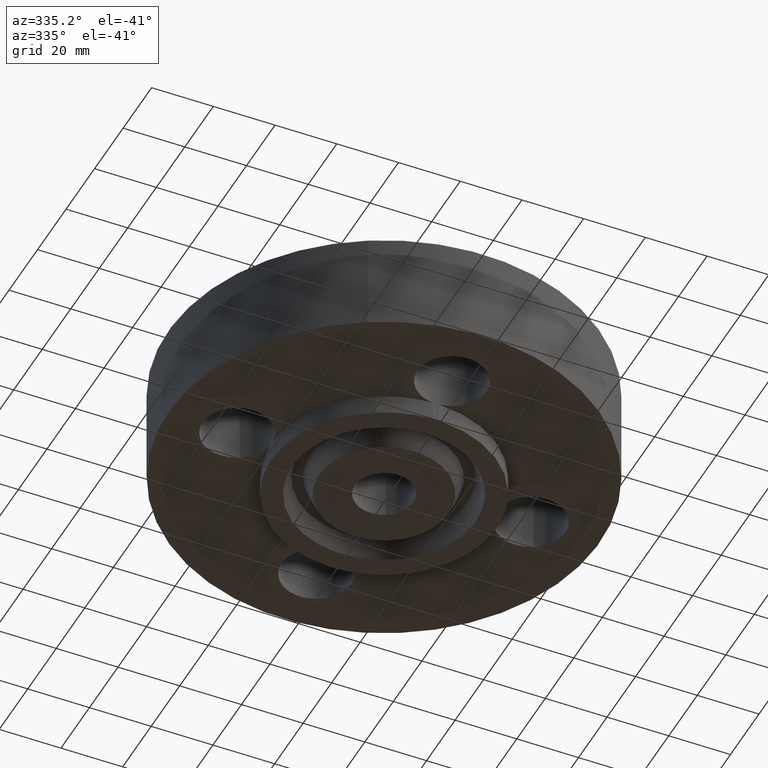
[diagram: clean part render]
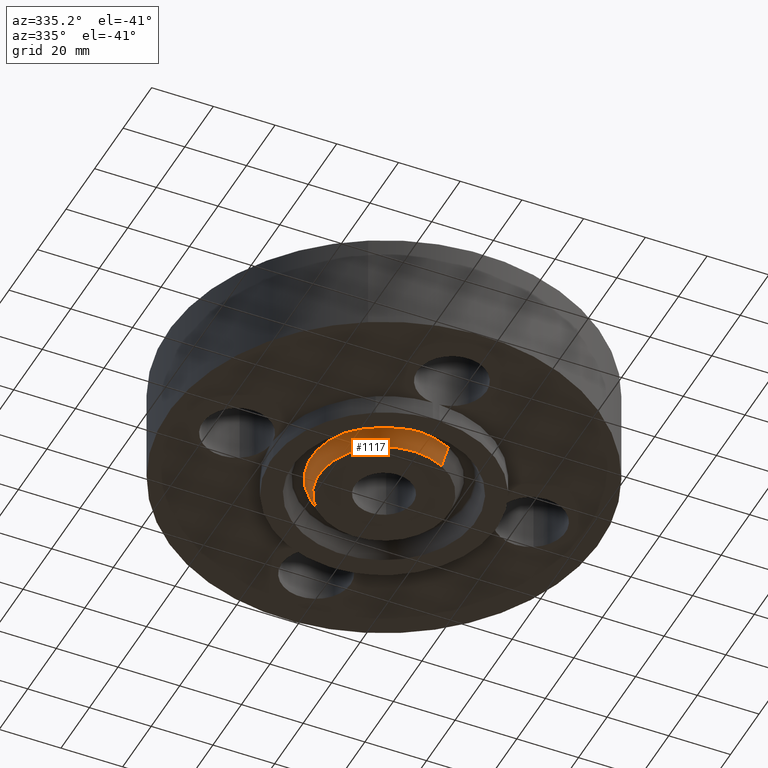
[diagram: same view with one face highlighted and labeled with its STEP entity id]
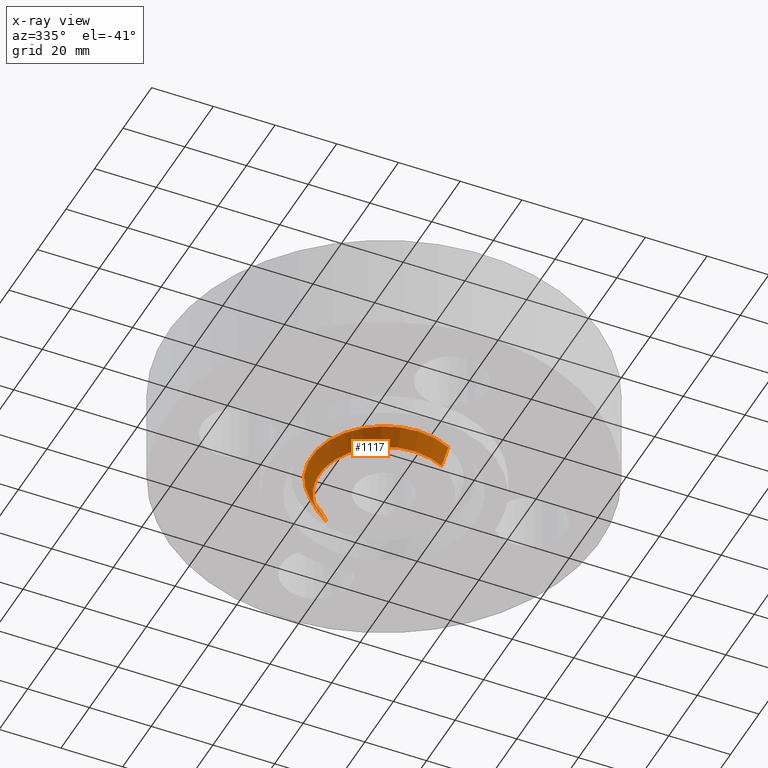
[diagram: x-ray of the same camera — body ghosted, the highlighted face saturated]
A machine part, auxiliary view. The second image highlights one B-rep face of the part: STEP entity #1117.
The next image is the same camera in x-ray: the body ghosted, the highlighted face saturated — about 0% of this face is hidden behind the body in this view.
In plain terms, the highlighted conical surface has half-angle 23 deg.
Its self-contained STEP definition (entity closure, byte-faithful):
#925=AXIS2_PLACEMENT_3D('Circle Axis2P3D',#923,#924,$) ;
#1079=AXIS2_PLACEMENT_3D('Circle Axis2P3D',#1077,#1078,$) ;
#1092=AXIS2_PLACEMENT_3D('Cone Axis2P3D',#1089,#1090,#1091) ;
#918=CARTESIAN_POINT('Vertex',(-0.396964345966,0.726638361248,-0.250000000001)) ;
#920=CARTESIAN_POINT('Vertex',(0.396964345966,-0.726638361248,-0.250000000001)) ;
#923=CARTESIAN_POINT('Axis2P3D Location',(-2.09805925913E-016,6.99353086378E-017,-0.250000000001)) ;
#1055=CARTESIAN_POINT('Vertex',(0.443996713314,-0.812730532203,-0.0188873350169)) ;
#1062=CARTESIAN_POINT('Vertex',(-0.443996713314,0.812730532203,-0.0188873350169)) ;
#1077=CARTESIAN_POINT('Axis2P3D Location',(0.,0.,-0.0188873350169)) ;
#1089=CARTESIAN_POINT('Axis2P3D Location',(0.,0.,-0.310000000001)) ;
#1094=CARTESIAN_POINT('Line Origine',(-0.42048052964,0.769684446725,-0.134443667509)) ;
#1099=CARTESIAN_POINT('Line Origine',(0.42048052964,-0.769684446725,-0.134443667509)) ;
#924=DIRECTION('Axis2P3D Direction',(0.,0.,-0.0393700787402)) ;
#1078=DIRECTION('Axis2P3D Direction',(0.,0.,0.0393700787402)) ;
#1090=DIRECTION('Axis2P3D Direction',(0.,0.,0.0393700787402)) ;
#1091=DIRECTION('Axis2P3D XDirection',(-0.0188750212049,0.0345504945626,0.)) ;
#1095=DIRECTION('Vector Direction',(-0.00737505833565,0.0134999537303,0.0362403485611)) ;
#1100=DIRECTION('Vector Direction',(0.00737505833565,-0.0134999537303,0.0362403485611)) ;
#1096=VECTOR('Line Direction',#1095,0.0393700787402) ;
#1101=VECTOR('Line Direction',#1100,0.0393700787402) ;
#1112=ORIENTED_EDGE('',*,*,#1103,.F.) ;
#1113=ORIENTED_EDGE('',*,*,#1081,.F.) ;
#1114=ORIENTED_EDGE('',*,*,#1098,.T.) ;
#1115=ORIENTED_EDGE('',*,*,#927,.F.) ;
#1117=ADVANCED_FACE('PartBody',(#1116),#1093,.T.) ;
#926=CIRCLE('generated circle',#925,0.828000000003) ;
#1080=CIRCLE('generated circle',#1079,0.926101505996) ;
#1093=CONICAL_SURFACE('Cone',#1092,0.802531511031,0.401425727959) ;
#927=EDGE_CURVE('',#921,#919,#926,.T.) ;
#1081=EDGE_CURVE('',#1063,#1056,#1080,.T.) ;
#1098=EDGE_CURVE('',#1063,#919,#1097,.F.) ;
#1103=EDGE_CURVE('',#1056,#921,#1102,.F.) ;
#1111=EDGE_LOOP('',(#1112,#1113,#1114,#1115)) ;
#1116=FACE_OUTER_BOUND('',#1111,.T.) ;
#1097=LINE('Line',#1094,#1096) ;
#1102=LINE('Line',#1099,#1101) ;
#919=VERTEX_POINT('',#918) ;
#921=VERTEX_POINT('',#920) ;
#1056=VERTEX_POINT('',#1055) ;
#1063=VERTEX_POINT('',#1062) ;